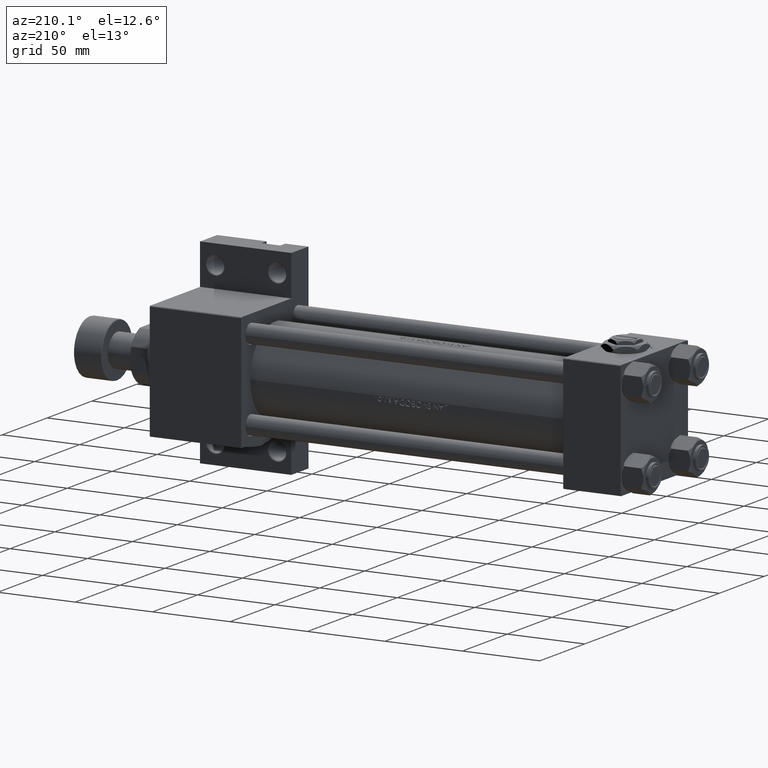
[diagram: clean part render]
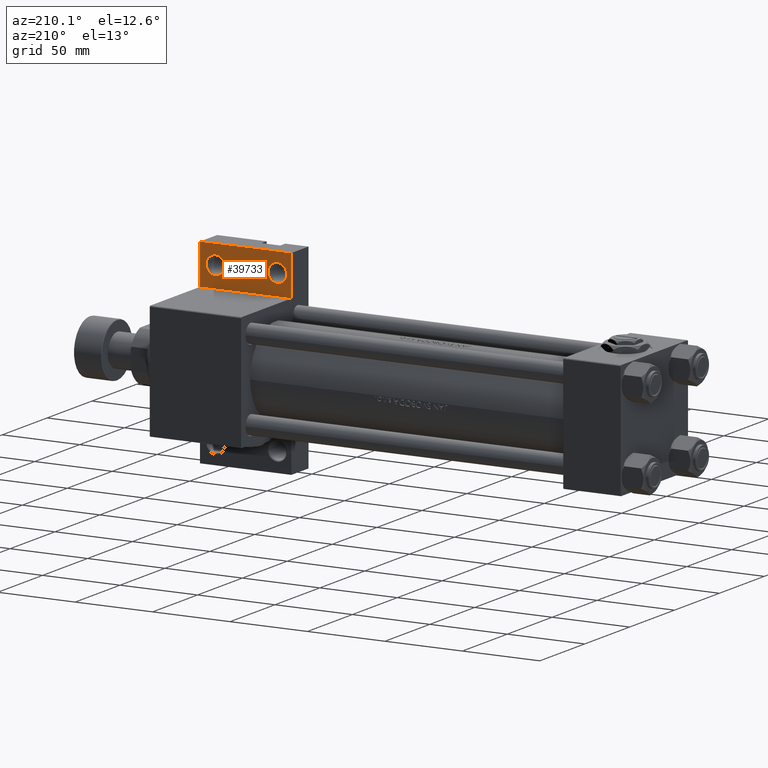
[diagram: same view with one face highlighted and labeled with its STEP entity id]
A machine part, auxiliary view. The second image highlights one B-rep face of the part: STEP entity #39733.
In plain terms, the highlighted planar face has unit normal (0, -1, 0).
Its self-contained STEP definition (entity closure, byte-faithful):
#373 = ORIENTED_EDGE ( 'NONE', *, *, #1598, .F. ) ;
#477 = CARTESIAN_POINT ( 'NONE',  ( 253.9999999999999432, -51.00000000000000711, -18.50000000000000000 ) ) ;
#953 = CARTESIAN_POINT ( 'NONE',  ( 245.0000000000000000, -37.50000000000000000, -18.50000000000000000 ) ) ;
#1369 = VECTOR ( 'NONE', #20729, 1000.000000000000000 ) ;
#1598 = EDGE_CURVE ( 'NONE', #31409, #20596, #44893, .T. ) ;
#3065 = VECTOR ( 'NONE', #25599, 1000.000000000000000 ) ;
#3255 = CARTESIAN_POINT ( 'NONE',  ( 288.0004999999999313, -51.00000000000000000, -18.50000000000000000 ) ) ;
#3562 = AXIS2_PLACEMENT_3D ( 'NONE', #5675, #23789, #36492 ) ;
#4216 = EDGE_LOOP ( 'NONE', ( #11797, #11082, #373, #31234 ) ) ;
#5451 = LINE ( 'NONE', #953, #1369 ) ;
#5675 = CARTESIAN_POINT ( 'NONE',  ( 293.9999999999999432, -51.00000000000000000, -18.50000000000000000 ) ) ;
#5997 = DIRECTION ( 'NONE',  ( 0.000000000000000000, 0.000000000000000000, -1.000000000000000000 ) ) ;
#6441 = EDGE_CURVE ( 'NONE', #35975, #8277, #10801, .T. ) ;
#6796 = CARTESIAN_POINT ( 'NONE',  ( 304.0000000000000000, -63.50000000000002842, -18.50000000000000000 ) ) ;
#8277 = VERTEX_POINT ( 'NONE', #22515 ) ;
#8385 = ORIENTED_EDGE ( 'NONE', *, *, #31891, .T. ) ;
#8867 = AXIS2_PLACEMENT_3D ( 'NONE', #14193, #10425, #24982 ) ;
#9246 = FACE_OUTER_BOUND ( 'NONE', #4216, .T. ) ;
#9251 = ORIENTED_EDGE ( 'NONE', *, *, #23757, .T. ) ;
#10232 = DIRECTION ( 'NONE',  ( -1.000000000000000000, 0.000000000000000000, 0.000000000000000000 ) ) ;
#10425 = DIRECTION ( 'NONE',  ( 0.000000000000000000, 0.000000000000000000, -1.000000000000000000 ) ) ;
#10546 = CIRCLE ( 'NONE', #38587, 5.999500000000046462 ) ;
#10722 = DIRECTION ( 'NONE',  ( 0.000000000000000000, 0.000000000000000000, -1.000000000000000000 ) ) ;
#10801 = LINE ( 'NONE', #6796, #3065 ) ;
#11082 = ORIENTED_EDGE ( 'NONE', *, *, #26961, .F. ) ;
#11540 = EDGE_CURVE ( 'NONE', #48347, #11691, #18486, .T. ) ;
#11691 = VERTEX_POINT ( 'NONE', #46023 ) ;
#11797 = ORIENTED_EDGE ( 'NONE', *, *, #6441, .F. ) ;
#13856 = EDGE_CURVE ( 'NONE', #18142, #27402, #10546, .T. ) ;
#14193 = CARTESIAN_POINT ( 'NONE',  ( 293.9999999999999432, -51.00000000000000000, -18.50000000000000000 ) ) ;
#17027 = PLANE ( 'NONE',  #23852 ) ;
#17245 = CARTESIAN_POINT ( 'NONE',  ( 245.0000000000000000, -63.50000000000002842, -18.50000000000000000 ) ) ;
#18056 = DIRECTION ( 'NONE',  ( 0.000000000000000000, 1.000000000000000000, 0.000000000000000000 ) ) ;
#18142 = VERTEX_POINT ( 'NONE', #23235 ) ;
#18486 = CIRCLE ( 'NONE', #8867, 5.999499999999990507 ) ;
#20006 = DIRECTION ( 'NONE',  ( -1.000000000000000000, 0.000000000000000000, 0.000000000000000000 ) ) ;
#20596 = VERTEX_POINT ( 'NONE', #28488 ) ;
#20729 = DIRECTION ( 'NONE',  ( 1.000000000000000000, -1.176083712526648949E-16, 0.000000000000000000 ) ) ;
#21011 = LINE ( 'NONE', #17245, #32499 ) ;
#21270 = DIRECTION ( 'NONE',  ( -1.000000000000000000, 0.000000000000000000, -0.000000000000000000 ) ) ;
#22515 = CARTESIAN_POINT ( 'NONE',  ( 304.0000000000000000, -63.50000000000002842, -18.50000000000000000 ) ) ;
#23235 = CARTESIAN_POINT ( 'NONE',  ( 259.9995000000000118, -51.00000000000000711, -18.50000000000000000 ) ) ;
#23757 = EDGE_CURVE ( 'NONE', #11691, #48347, #28355, .T. ) ;
#23789 = DIRECTION ( 'NONE',  ( 0.000000000000000000, 0.000000000000000000, -1.000000000000000000 ) ) ;
#23852 = AXIS2_PLACEMENT_3D ( 'NONE', #48096, #5997, #21270 ) ;
#24037 = AXIS2_PLACEMENT_3D ( 'NONE', #49064, #10722, #10232 ) ;
#24982 = DIRECTION ( 'NONE',  ( -1.000000000000000000, 0.000000000000000000, 0.000000000000000000 ) ) ;
#25275 = FACE_BOUND ( 'NONE', #49598, .T. ) ;
#25418 = EDGE_LOOP ( 'NONE', ( #37489, #8385 ) ) ;
#25599 = DIRECTION ( 'NONE',  ( -0.000000000000000000, -1.000000000000000000, -0.000000000000000000 ) ) ;
#26961 = EDGE_CURVE ( 'NONE', #20596, #35975, #5451, .T. ) ;
#27402 = VERTEX_POINT ( 'NONE', #41204 ) ;
#28355 = CIRCLE ( 'NONE', #3562, 5.999499999999990507 ) ;
#28488 = CARTESIAN_POINT ( 'NONE',  ( 245.0000000000000000, -37.50000000000000000, -18.50000000000000000 ) ) ;
#28530 = FACE_BOUND ( 'NONE', #25418, .T. ) ;
#29467 = ORIENTED_EDGE ( 'NONE', *, *, #11540, .T. ) ;
#31234 = ORIENTED_EDGE ( 'NONE', *, *, #35321, .F. ) ;
#31409 = VERTEX_POINT ( 'NONE', #33650 ) ;
#31891 = EDGE_CURVE ( 'NONE', #27402, #18142, #45635, .T. ) ;
#32499 = VECTOR ( 'NONE', #32525, 1000.000000000000000 ) ;
#32525 = DIRECTION ( 'NONE',  ( -1.000000000000000000, -0.000000000000000000, -0.000000000000000000 ) ) ;
#33650 = CARTESIAN_POINT ( 'NONE',  ( 245.0000000000000000, -63.50000000000002842, -18.50000000000000000 ) ) ;
#35321 = EDGE_CURVE ( 'NONE', #8277, #31409, #21011, .T. ) ;
#35975 = VERTEX_POINT ( 'NONE', #38730 ) ;
#36492 = DIRECTION ( 'NONE',  ( -1.000000000000000000, 0.000000000000000000, 0.000000000000000000 ) ) ;
#37127 = CARTESIAN_POINT ( 'NONE',  ( 245.0000000000000000, -63.50000000000002842, -18.50000000000000000 ) ) ;
#37489 = ORIENTED_EDGE ( 'NONE', *, *, #13856, .T. ) ;
#38332 = DIRECTION ( 'NONE',  ( 0.000000000000000000, 0.000000000000000000, -1.000000000000000000 ) ) ;
#38587 = AXIS2_PLACEMENT_3D ( 'NONE', #477, #38332, #20006 ) ;
#38730 = CARTESIAN_POINT ( 'NONE',  ( 304.0000000000000000, -37.50000000000000711, -18.50000000000000355 ) ) ;
#39733 = ADVANCED_FACE ( 'NONE', ( #25275, #28530, #9246 ), #17027, .F. ) ;
#41204 = CARTESIAN_POINT ( 'NONE',  ( 248.0004999999999313, -51.00000000000000711, -18.50000000000000000 ) ) ;
#43881 = VECTOR ( 'NONE', #18056, 1000.000000000000000 ) ;
#44893 = LINE ( 'NONE', #37127, #43881 ) ;
#45635 = CIRCLE ( 'NONE', #24037, 5.999500000000046462 ) ;
#46023 = CARTESIAN_POINT ( 'NONE',  ( 299.9994999999998981, -51.00000000000000000, -18.50000000000000000 ) ) ;
#48096 = CARTESIAN_POINT ( 'NONE',  ( 0.000000000000000000, 0.000000000000000000, -18.50000000000000000 ) ) ;
#48347 = VERTEX_POINT ( 'NONE', #3255 ) ;
#49064 = CARTESIAN_POINT ( 'NONE',  ( 253.9999999999999432, -51.00000000000000711, -18.50000000000000000 ) ) ;
#49598 = EDGE_LOOP ( 'NONE', ( #9251, #29467 ) ) ;